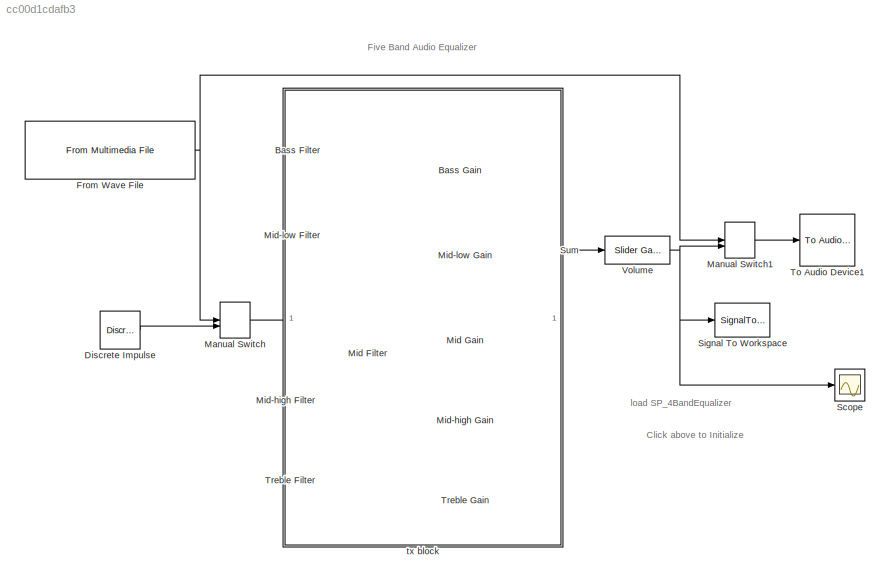
MODEL slx_cc00d1cdafb3
KIND model
CONFIG AbsTol = auto
CONFIG FixedStep = auto
CONFIG MaxStep = auto
CONFIG MinStep = auto
CONFIG RelTol = 1e-3
CONFIG SampleTimeConstraint = Unconstrained
CONFIG Solver = ode45
CONFIG SolverMode = Auto
CONFIG SolverName = ode45
CONFIG StartTime = 0.0
CONFIG StopTime = inf
BLOCK [Reference] Bass Filter  REF=dspobslib/Digital Filter
  AllPoleFiltStruct = Direct form
  BiQuadCoeffs = [1 0.3 0.4 1 0.1 0.2]
  CoeffSource = Specify via dialog
  DenCoeffs = denLP
  FIRFiltStruct = Direct form
  FiltPerSampPopup = One filter per frame
  FilterSource = Specify via dialog
  IC = 0
  ICden = 0
  ICnum = 0
  IIRFiltStruct = Direct form II transposed
  InputProcessing = Inherited (this choice will be removed - see release notes)
  LatticeCoeffs = [0.2 0.4]
  LockScale = off
  NumCoeffs = numLP
  Ports = [1, 1]
  ScaleValues = 1
  SourceBlock = dspobslib/Digital Filter
  SourceType = Digital Filter
  TypePopup = IIR (poles & zeros)
  UserDataPersistent = on
  accumFracLength = 30
  accumMode = Same as product output
  accumWordLength = 32
  additionalParams = off
  allowOverrides = on
  denIgnore = on
  dfiltObjectName = dfilt.dffir([1 2 1])
  firstCoeffFracLength = 15
  firstCoeffMode = Same word length as input
  firstCoeffWordLength = 16
  memoryFracLength = 15
  memoryMode = Same as accumulator
  memoryWordLength = 16
  multiplicandFracLength = 30
  multiplicandMode = Same as output
  multiplicandWordLength = 32
  outputFracLength = 15
  outputMode = Same as accumulator
  outputWordLength = 16
  overflowMode = off
  prodOutputFracLength = 30
  prodOutputMode = Same as input
  prodOutputWordLength = 32
  roundingMode = Floor
  scaleValueFracLength = 14
  secondCoeffFracLength = 15
  secondCoeffMode = Same as numerator
  secondCoeffWordLength = 16
  showAcc = off
  showCoeff = off
  showMem = off
  showMpy = off
  showOut = off
  stageIOMode = Same as input
  stageIOWordLength = 16
  stageInFracLength = 15
  stageOutFracLength = 15
  tapSumFracLength = 30
  tapSumMode = Same as input
  tapSumWordLength = 32
  thirdCoeffFracLength = 15
  thirdCoeffMode = Same as input
  thirdCoeffWordLength = 16
BLOCK [Reference] Bass Gain  REF=simulink/Math
Operations/Slider
Gain
  Ports = [1, 1]
  SourceBlock = simulink/Math\nOperations/Slider\nGain
  SourceType = Slider Gain
  gain = 1
  high = 2
  low = 0
BLOCK [Reference] Discrete Impulse  REF=dspsrcs4/Discrete 
Impulse
  Delay = 0
  FrameSample = 1
  LastOutDataTypeStr = double
  OutDataTypeStr = double
  Ports = [0, 1]
  SampleTime = 1/fSampling
  SourceBlock = dspsrcs4/Discrete \nImpulse
  SourceType = Discrete Impulse
  additionalParams = off
  allowOverrides = on
  dataType = double
  fracBitsMode = Best precision
  isSigned = on
  numFracBits = 15
  udDataType = sfix(16)
  wordLen = 16
BLOCK [Reference] From Wave File  REF=dspvision/From Multimedia File
  Ports = [0, 1]
  SourceBlock = dspvision/From Multimedia File
  SourceType = From Multimedia File
  audioDataType = double
  audioFrameSize = 1
  colorVideoFormat = Separate color signals
  computeAudioFrameSize = off
  dataOrg = Column-major
  fourcc = RGB
  inheritSampleTime = on
  inputFilename = myRecord.wav
  isIntensityVideo = off
  loop = on
  noAudioOutput = off
  numPlays = 1000
  outSamplingMode = Sample based
  outputEOF = off
  outputStreams = Audio only
  userDefinedSampleTime = 1/30
  videoDataType = single
BLOCK [ManualSwitch] Manual Switch
BLOCK [ManualSwitch] Manual Switch1
  CurrentSetting = 0
BLOCK [Reference] Mid Filter  REF=dspobslib/Digital Filter
  AllPoleFiltStruct = Direct form
  BiQuadCoeffs = [1 0.3 0.4 1 0.1 0.2]
  CoeffSource = Specify via dialog
  DenCoeffs = denMid2
  FIRFiltStruct = Direct form
  FiltPerSampPopup = One filter per frame
  FilterSource = Specify via dialog
  IC = 0
  ICden = 0
  ICnum = 0
  IIRFiltStruct = Direct form II transposed
  InputProcessing = Inherited (this choice will be removed - see release notes)
  LatticeCoeffs = [0.2 0.4]
  LockScale = off
  NumCoeffs = numMid2
  Ports = [1, 1]
  ScaleValues = 1
  SourceBlock = dspobslib/Digital Filter
  SourceType = Digital Filter
  TypePopup = IIR (poles & zeros)
  UserDataPersistent = on
  accumFracLength = 30
  accumMode = Same as product output
  accumWordLength = 32
  additionalParams = off
  allowOverrides = on
  denIgnore = on
  dfiltObjectName = dfilt.dffir([1 2 1])
  firstCoeffFracLength = 15
  firstCoeffMode = Same word length as input
  firstCoeffWordLength = 16
  memoryFracLength = 15
  memoryMode = Same as accumulator
  memoryWordLength = 16
  multiplicandFracLength = 30
  multiplicandMode = Same as output
  multiplicandWordLength = 32
  outputFracLength = 15
  outputMode = Same as accumulator
  outputWordLength = 16
  overflowMode = off
  prodOutputFracLength = 30
  prodOutputMode = Same as input
  prodOutputWordLength = 32
  roundingMode = Floor
  scaleValueFracLength = 14
  secondCoeffFracLength = 15
  secondCoeffMode = Same as numerator
  secondCoeffWordLength = 16
  showAcc = off
  showCoeff = off
  showMem = off
  showMpy = off
  showOut = off
  stageIOMode = Same as input
  stageIOWordLength = 16
  stageInFracLength = 15
  stageOutFracLength = 15
  tapSumFracLength = 30
  tapSumMode = Same as input
  tapSumWordLength = 32
  thirdCoeffFracLength = 15
  thirdCoeffMode = Same as input
  thirdCoeffWordLength = 16
BLOCK [Reference] Mid Gain  REF=simulink/Math
Operations/Slider
Gain
  Ports = [1, 1]
  SourceBlock = simulink/Math\nOperations/Slider\nGain
  SourceType = Slider Gain
  gain = 0
  high = 2
  low = 0
BLOCK [Reference] Mid-high Filter  REF=dspobslib/Digital Filter
  AllPoleFiltStruct = Direct form
  BiQuadCoeffs = [1 0.3 0.4 1 0.1 0.2]
  CoeffSource = Specify via dialog
  DenCoeffs = denMid2
  FIRFiltStruct = Direct form
  FiltPerSampPopup = One filter per frame
  FilterSource = Specify via dialog
  IC = 0
  ICden = 0
  ICnum = 0
  IIRFiltStruct = Direct form II transposed
  InputProcessing = Inherited (this choice will be removed - see release notes)
  LatticeCoeffs = [0.2 0.4]
  LockScale = off
  NumCoeffs = numMid3
  Ports = [1, 1]
  ScaleValues = 1
  SourceBlock = dspobslib/Digital Filter
  SourceType = Digital Filter
  TypePopup = FIR (all zeros)
  UserDataPersistent = on
  accumFracLength = 30
  accumMode = Same as product output
  accumWordLength = 32
  additionalParams = off
  allowOverrides = on
  denIgnore = on
  dfiltObjectName = dfilt.dffir([1 2 1])
  firstCoeffFracLength = 15
  firstCoeffMode = Same word length as input
  firstCoeffWordLength = 16
  memoryFracLength = 15
  memoryMode = Same as accumulator
  memoryWordLength = 16
  multiplicandFracLength = 30
  multiplicandMode = Same as output
  multiplicandWordLength = 32
  outputFracLength = 15
  outputMode = Same as accumulator
  outputWordLength = 16
  overflowMode = off
  prodOutputFracLength = 30
  prodOutputMode = Same as input
  prodOutputWordLength = 32
  roundingMode = Floor
  scaleValueFracLength = 14
  secondCoeffFracLength = 15
  secondCoeffMode = Same as numerator
  secondCoeffWordLength = 16
  showAcc = off
  showCoeff = off
  showMem = off
  showMpy = off
  showOut = off
  stageIOMode = Same as input
  stageIOWordLength = 16
  stageInFracLength = 15
  stageOutFracLength = 15
  tapSumFracLength = 30
  tapSumMode = Same as input
  tapSumWordLength = 32
  thirdCoeffFracLength = 15
  thirdCoeffMode = Same as input
  thirdCoeffWordLength = 16
BLOCK [Reference] Mid-high Gain  REF=simulink/Math
Operations/Slider
Gain
  Ports = [1, 1]
  SourceBlock = simulink/Math\nOperations/Slider\nGain
  SourceType = Slider Gain
  gain = 0
  high = 2
  low = 0
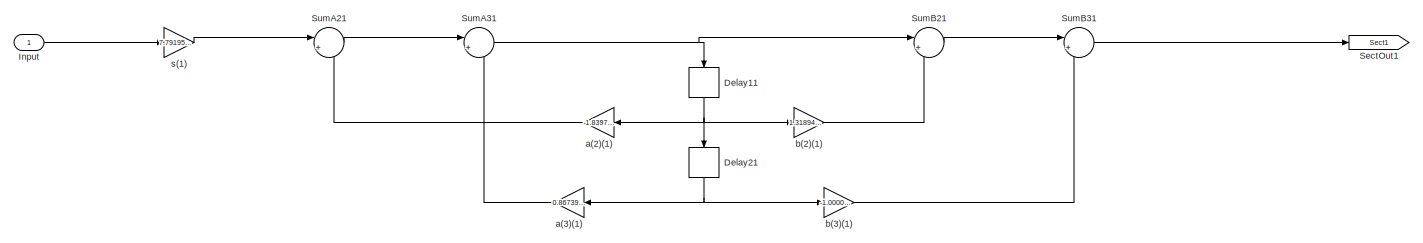
[diagram: Mid-low Filter - part 1/7, left side, full height]
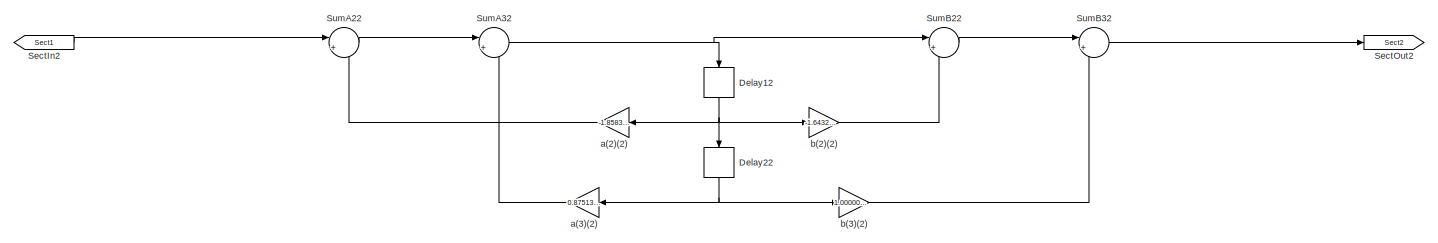
[diagram: Mid-low Filter - part 2/7, left side, full height]
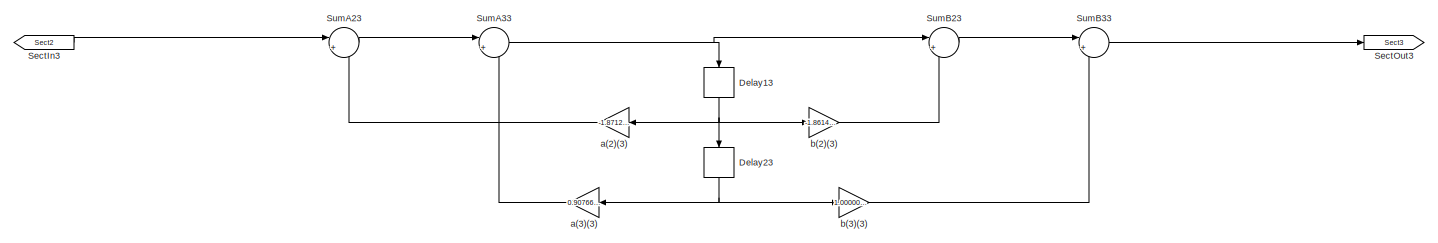
[diagram: Mid-low Filter - part 3/7, center side, full height]
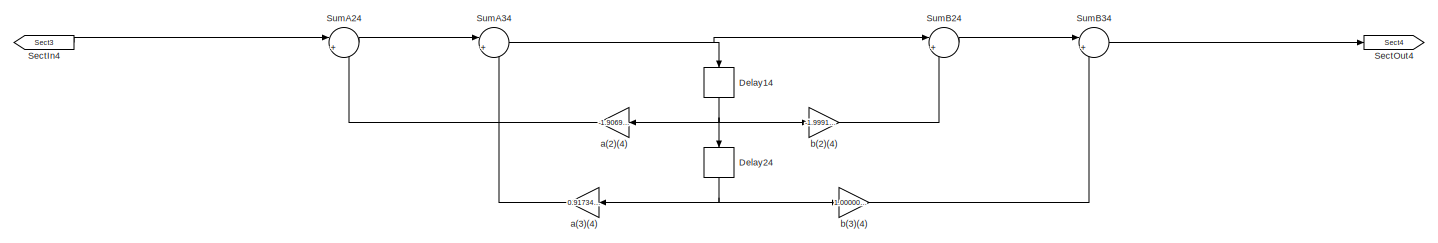
[diagram: Mid-low Filter - part 4/7, center side, full height]
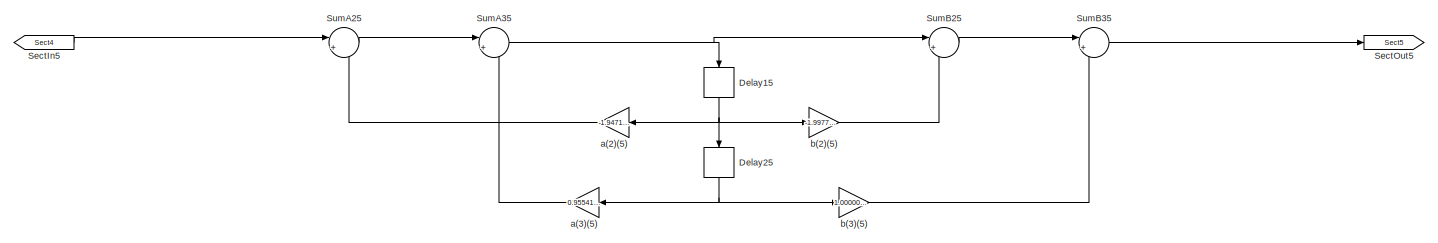
[diagram: Mid-low Filter - part 5/7, center side, full height]
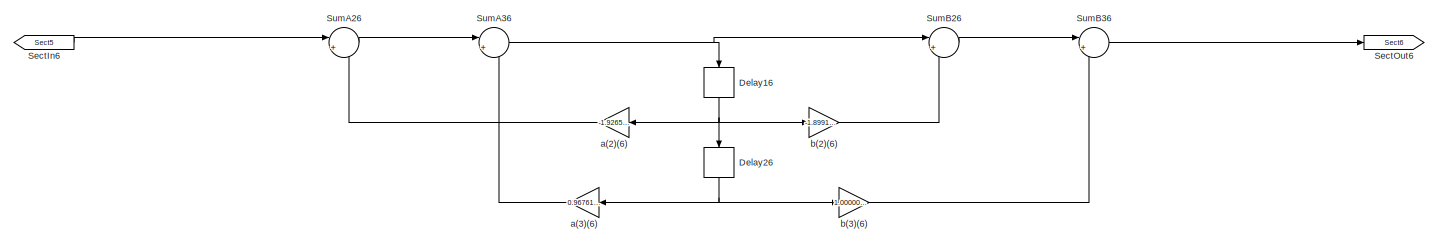
[diagram: Mid-low Filter - part 6/7, right side, full height]
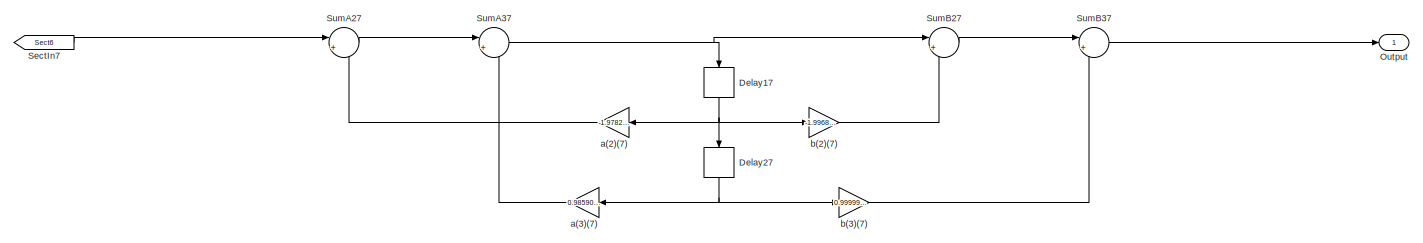
[diagram: Mid-low Filter - part 7/7, right side, full height]
BLOCK [SubSystem] Mid-low Filter
  ErrorFcn = dspFilterRealizedInBasicElemsAlgLoopErrFcnCallback
  Ports = [1, 1]
  RequestExecContextInheritance = off
  Tag = FilterWizardSubSystem
  UserDataPersistent = on
BLOCK [Delay] Mid-low Filter/Delay11
  DelayLength = 1
  InputPortMap = u0
  InputProcessing = Inherited
  Ports = [1, 1]
BLOCK [Delay] Mid-low Filter/Delay12
  DelayLength = 1
  InputPortMap = u0
  InputProcessing = Inherited
  Ports = [1, 1]
BLOCK [Delay] Mid-low Filter/Delay13
  DelayLength = 1
  InputPortMap = u0
  InputProcessing = Inherited
  Ports = [1, 1]
BLOCK [Delay] Mid-low Filter/Delay14
  DelayLength = 1
  InputPortMap = u0
  InputProcessing = Inherited
  Ports = [1, 1]
BLOCK [Delay] Mid-low Filter/Delay15
  DelayLength = 1
  InputPortMap = u0
  InputProcessing = Inherited
  Ports = [1, 1]
BLOCK [Delay] Mid-low Filter/Delay16
  DelayLength = 1
  InputPortMap = u0
  InputProcessing = Inherited
  Ports = [1, 1]
BLOCK [Delay] Mid-low Filter/Delay17
  DelayLength = 1
  InputPortMap = u0
  InputProcessing = Inherited
  Ports = [1, 1]
BLOCK [Delay] Mid-low Filter/Delay21
  DelayLength = 1
  InputPortMap = u0
  InputProcessing = Inherited
  Ports = [1, 1]
BLOCK [Delay] Mid-low Filter/Delay22
  DelayLength = 1
  InputPortMap = u0
  InputProcessing = Inherited
  Ports = [1, 1]
BLOCK [Delay] Mid-low Filter/Delay23
  DelayLength = 1
  InputPortMap = u0
  InputProcessing = Inherited
  Ports = [1, 1]
BLOCK [Delay] Mid-low Filter/Delay24
  DelayLength = 1
  InputPortMap = u0
  InputProcessing = Inherited
  Ports = [1, 1]
BLOCK [Delay] Mid-low Filter/Delay25
  DelayLength = 1
  InputPortMap = u0
  InputProcessing = Inherited
  Ports = [1, 1]
BLOCK [Delay] Mid-low Filter/Delay26
  DelayLength = 1
  InputPortMap = u0
  InputProcessing = Inherited
  Ports = [1, 1]
BLOCK [Delay] Mid-low Filter/Delay27
  DelayLength = 1
  InputPortMap = u0
  InputProcessing = Inherited
  Ports = [1, 1]
BLOCK [Inport] Mid-low Filter/Input
  IconDisplay = Port number
BLOCK [Outport] Mid-low Filter/Output
  IconDisplay = Port number
BLOCK [From] Mid-low Filter/SectIn2
  GotoTag = Sect1
BLOCK [From] Mid-low Filter/SectIn3
  GotoTag = Sect2
BLOCK [From] Mid-low Filter/SectIn4
  GotoTag = Sect3
BLOCK [From] Mid-low Filter/SectIn5
  GotoTag = Sect4
BLOCK [From] Mid-low Filter/SectIn6
  GotoTag = Sect5
BLOCK [From] Mid-low Filter/SectIn7
  GotoTag = Sect6
BLOCK [Goto] Mid-low Filter/SectOut1
  GotoTag = Sect1
BLOCK [Goto] Mid-low Filter/SectOut2
  GotoTag = Sect2
BLOCK [Goto] Mid-low Filter/SectOut3
  GotoTag = Sect3
BLOCK [Goto] Mid-low Filter/SectOut4
  GotoTag = Sect4
BLOCK [Goto] Mid-low Filter/SectOut5
  GotoTag = Sect5
BLOCK [Goto] Mid-low Filter/SectOut6
  GotoTag = Sect6
BLOCK [Sum] Mid-low Filter/SumA21
  IconShape = round
  InputSameDT = off
  Inputs = |+-
  Ports = [2, 1]
  RndMeth = Nearest
BLOCK [Sum] Mid-low Filter/SumA22
  IconShape = round
  InputSameDT = off
  Inputs = |+-
  Ports = [2, 1]
  RndMeth = Nearest
BLOCK [Sum] Mid-low Filter/SumA23
  IconShape = round
  InputSameDT = off
  Inputs = |+-
  Ports = [2, 1]
  RndMeth = Nearest
BLOCK [Sum] Mid-low Filter/SumA24
  IconShape = round
  InputSameDT = off
  Inputs = |+-
  Ports = [2, 1]
  RndMeth = Nearest
BLOCK [Sum] Mid-low Filter/SumA25
  IconShape = round
  InputSameDT = off
  Inputs = |+-
  Ports = [2, 1]
  RndMeth = Nearest
BLOCK [Sum] Mid-low Filter/SumA26
  IconShape = round
  InputSameDT = off
  Inputs = |+-
  Ports = [2, 1]
  RndMeth = Nearest
BLOCK [Sum] Mid-low Filter/SumA27
  IconShape = round
  InputSameDT = off
  Inputs = |+-
  Ports = [2, 1]
  RndMeth = Nearest
BLOCK [Sum] Mid-low Filter/SumA31
  IconShape = round
  InputSameDT = off
  Inputs = |+-
  Ports = [2, 1]
  RndMeth = Nearest
BLOCK [Sum] Mid-low Filter/SumA32
  IconShape = round
  InputSameDT = off
  Inputs = |+-
  Ports = [2, 1]
  RndMeth = Nearest
BLOCK [Sum] Mid-low Filter/SumA33
  IconShape = round
  InputSameDT = off
  Inputs = |+-
  Ports = [2, 1]
  RndMeth = Nearest
BLOCK [Sum] Mid-low Filter/SumA34
  IconShape = round
  InputSameDT = off
  Inputs = |+-
  Ports = [2, 1]
  RndMeth = Nearest
BLOCK [Sum] Mid-low Filter/SumA35
  IconShape = round
  InputSameDT = off
  Inputs = |+-
  Ports = [2, 1]
  RndMeth = Nearest
BLOCK [Sum] Mid-low Filter/SumA36
  IconShape = round
  InputSameDT = off
  Inputs = |+-
  Ports = [2, 1]
  RndMeth = Nearest
BLOCK [Sum] Mid-low Filter/SumA37
  IconShape = round
  InputSameDT = off
  Inputs = |+-
  Ports = [2, 1]
  RndMeth = Nearest
BLOCK [Sum] Mid-low Filter/SumB21
  IconShape = round
  InputSameDT = off
  Inputs = |++
  Ports = [2, 1]
  RndMeth = Nearest
BLOCK [Sum] Mid-low Filter/SumB22
  IconShape = round
  InputSameDT = off
  Inputs = |++
  Ports = [2, 1]
  RndMeth = Nearest
BLOCK [Sum] Mid-low Filter/SumB23
  IconShape = round
  InputSameDT = off
  Inputs = |++
  Ports = [2, 1]
  RndMeth = Nearest
BLOCK [Sum] Mid-low Filter/SumB24
  IconShape = round
  InputSameDT = off
  Inputs = |++
  Ports = [2, 1]
  RndMeth = Nearest
BLOCK [Sum] Mid-low Filter/SumB25
  IconShape = round
  InputSameDT = off
  Inputs = |++
  Ports = [2, 1]
  RndMeth = Nearest
BLOCK [Sum] Mid-low Filter/SumB26
  IconShape = round
  InputSameDT = off
  Inputs = |++
  Ports = [2, 1]
  RndMeth = Nearest
BLOCK [Sum] Mid-low Filter/SumB27
  IconShape = round
  InputSameDT = off
  Inputs = |++
  Ports = [2, 1]
  RndMeth = Nearest
BLOCK [Sum] Mid-low Filter/SumB31
  IconShape = round
  InputSameDT = off
  Inputs = |++
  Ports = [2, 1]
  RndMeth = Nearest
BLOCK [Sum] Mid-low Filter/SumB32
  IconShape = round
  InputSameDT = off
  Inputs = |++
  Ports = [2, 1]
  RndMeth = Nearest
BLOCK [Sum] Mid-low Filter/SumB33
  IconShape = round
  InputSameDT = off
  Inputs = |++
  Ports = [2, 1]
  RndMeth = Nearest
BLOCK [Sum] Mid-low Filter/SumB34
  IconShape = round
  InputSameDT = off
  Inputs = |++
  Ports = [2, 1]
  RndMeth = Nearest
BLOCK [Sum] Mid-low Filter/SumB35
  IconShape = round
  InputSameDT = off
  Inputs = |++
  Ports = [2, 1]
  RndMeth = Nearest
BLOCK [Sum] Mid-low Filter/SumB36
  IconShape = round
  InputSameDT = off
  Inputs = |++
  Ports = [2, 1]
  RndMeth = Nearest
BLOCK [Sum] Mid-low Filter/SumB37
  IconShape = round
  InputSameDT = off
  Inputs = |++
  Ports = [2, 1]
  RndMeth = Nearest
BLOCK [Gain] Mid-low Filter/a(2)(1)
  Gain = -1.8397589147605165
  ParamDataTypeStr = float('double')
  RndMeth = Nearest
BLOCK [Gain] Mid-low Filter/a(2)(2)
  Gain = -1.8583220864166883
  ParamDataTypeStr = float('double')
  RndMeth = Nearest
BLOCK [Gain] Mid-low Filter/a(2)(3)
  Gain = -1.8712688014443435
  ParamDataTypeStr = float('double')
  RndMeth = Nearest
BLOCK [Gain] Mid-low Filter/a(2)(4)
  Gain = -1.9069399167069183
  ParamDataTypeStr = float('double')
  RndMeth = Nearest
BLOCK [Gain] Mid-low Filter/a(2)(5)
  Gain = -1.9471940030405648
  ParamDataTypeStr = float('double')
  RndMeth = Nearest
BLOCK [Gain] Mid-low Filter/a(2)(6)
  Gain = -1.926593286699446
  ParamDataTypeStr = float('double')
  RndMeth = Nearest
BLOCK [Gain] Mid-low Filter/a(2)(7)
  Gain = -1.9782662654393
  ParamDataTypeStr = float('double')
  RndMeth = Nearest
BLOCK [Gain] Mid-low Filter/a(3)(1)
  Gain = 0.86739367596745631
  ParamDataTypeStr = float('double')
  RndMeth = Nearest
BLOCK [Gain] Mid-low Filter/a(3)(2)
  Gain = 0.87513761574710858
  ParamDataTypeStr = float('double')
  RndMeth = Nearest
BLOCK [Gain] Mid-low Filter/a(3)(3)
  Gain = 0.90766844036617067
  ParamDataTypeStr = float('double')
  RndMeth = Nearest
BLOCK [Gain] Mid-low Filter/a(3)(4)
  Gain = 0.91734710412163789
  ParamDataTypeStr = float('double')
  RndMeth = Nearest
BLOCK [Gain] Mid-low Filter/a(3)(5)
  Gain = 0.95541312807765288
  ParamDataTypeStr = float('double')
  RndMeth = Nearest
BLOCK [Gain] Mid-low Filter/a(3)(6)
  Gain = 0.96761068739952549
  ParamDataTypeStr = float('double')
  RndMeth = Nearest
BLOCK [Gain] Mid-low Filter/a(3)(7)
  Gain = 0.98590111868989483
  ParamDataTypeStr = float('double')
  RndMeth = Nearest
BLOCK [Gain] Mid-low Filter/b(2)(1)
  Gain = 1.318944953254686e-013
  ParamDataTypeStr = float('double')
  RndMeth = Nearest
BLOCK [Gain] Mid-low Filter/b(2)(2)
  Gain = -1.6432990603581503
  ParamDataTypeStr = float('double')
  RndMeth = Nearest
BLOCK [Gain] Mid-low Filter/b(2)(3)
  Gain = -1.8614317424464004
  ParamDataTypeStr = float('double')
  RndMeth = Nearest
BLOCK [Gain] Mid-low Filter/b(2)(4)
  Gain = -1.9991713736623455
  ParamDataTypeStr = float('double')
  RndMeth = Nearest
BLOCK [Gain] Mid-low Filter/b(2)(5)
  Gain = -1.9977400579240996
  ParamDataTypeStr = float('double')
  RndMeth = Nearest
BLOCK [Gain] Mid-low Filter/b(2)(6)
  Gain = -1.8991207395228842
  ParamDataTypeStr = float('double')
  RndMeth = Nearest
BLOCK [Gain] Mid-low Filter/b(2)(7)
  Gain = -1.9968661186880208
  ParamDataTypeStr = float('double')
  RndMeth = Nearest
BLOCK [Gain] Mid-low Filter/b(3)(1)
  Gain = -1.0000000000001319
  ParamDataTypeStr = float('double')
  RndMeth = Nearest
BLOCK [Gain] Mid-low Filter/b(3)(2)
  Gain = 1.0000000000000222
  ParamDataTypeStr = float('double')
  RndMeth = Nearest
BLOCK [Gain] Mid-low Filter/b(3)(3)
  Gain = 1.0000000000000007
  ParamDataTypeStr = float('double')
  RndMeth = Nearest
BLOCK [Gain] Mid-low Filter/b(3)(4)
  Gain = 1.000000000000002
  ParamDataTypeStr = float('double')
  RndMeth = Nearest
BLOCK [Gain] Mid-low Filter/b(3)(5)
  Gain = 1.0000000000000024
  ParamDataTypeStr = float('double')
  RndMeth = Nearest
BLOCK [Gain] Mid-low Filter/b(3)(6)
  Gain = 1.0000000000000002
  ParamDataTypeStr = float('double')
  RndMeth = Nearest
BLOCK [Gain] Mid-low Filter/b(3)(7)
  Gain = 0.99999999999999989
  ParamDataTypeStr = float('double')
  RndMeth = Nearest
BLOCK [Gain] Mid-low Filter/s(1)
  Gain = 7.7919570257835674e-005
  ParamDataTypeStr = float('double')
  RndMeth = Nearest
BLOCK [Reference] Mid-low Gain  REF=simulink/Math
Operations/Slider
Gain
  Ports = [1, 1]
  SourceBlock = simulink/Math\nOperations/Slider\nGain
  SourceType = Slider Gain
  gain = 0
  high = 2
  low = 0
BLOCK [Scope] Scope
  Floating = off
  NumInputPorts = 1
  Ports = [1]
  YMax = 1.25
  YMin = -1.25
BLOCK [SignalToWorkspace] Signal To Workspace
  CopyFcn = dspblkcopystw(gcbh);
  MaxDataPoints = inf
  Ports = [1]
  Save2DSignal = Inherit from input (this choice will be removed - see release notes)
  VariableName = yout
BLOCK [Sum] Sum
  IconShape = round
  InputSameDT = off
  Inputs = |+++++
  OutDataTypeStr = Inherit: Inherit via internal rule
  Ports = [5, 1]
  SaturateOnIntegerOverflow = off
BLOCK [Reference] To Audio Device1  REF=dspsnks4/To Audio
Device
  Ports = [1]
  SourceBlock = dspsnks4/To Audio\nDevice
  SourceType = To Audio Device
  autoBufferSize = on
  bufferSize = 4096
  defaultOutputChannelMapping = on
  deviceDatatype = Determine from input data type
  deviceName = Default
  inheritSampleRate = off
  outputChannelMapping = 1:2
  outputNumUnderrunSamples = off
  queueDuration = 1.0
  sampleRate = 22050
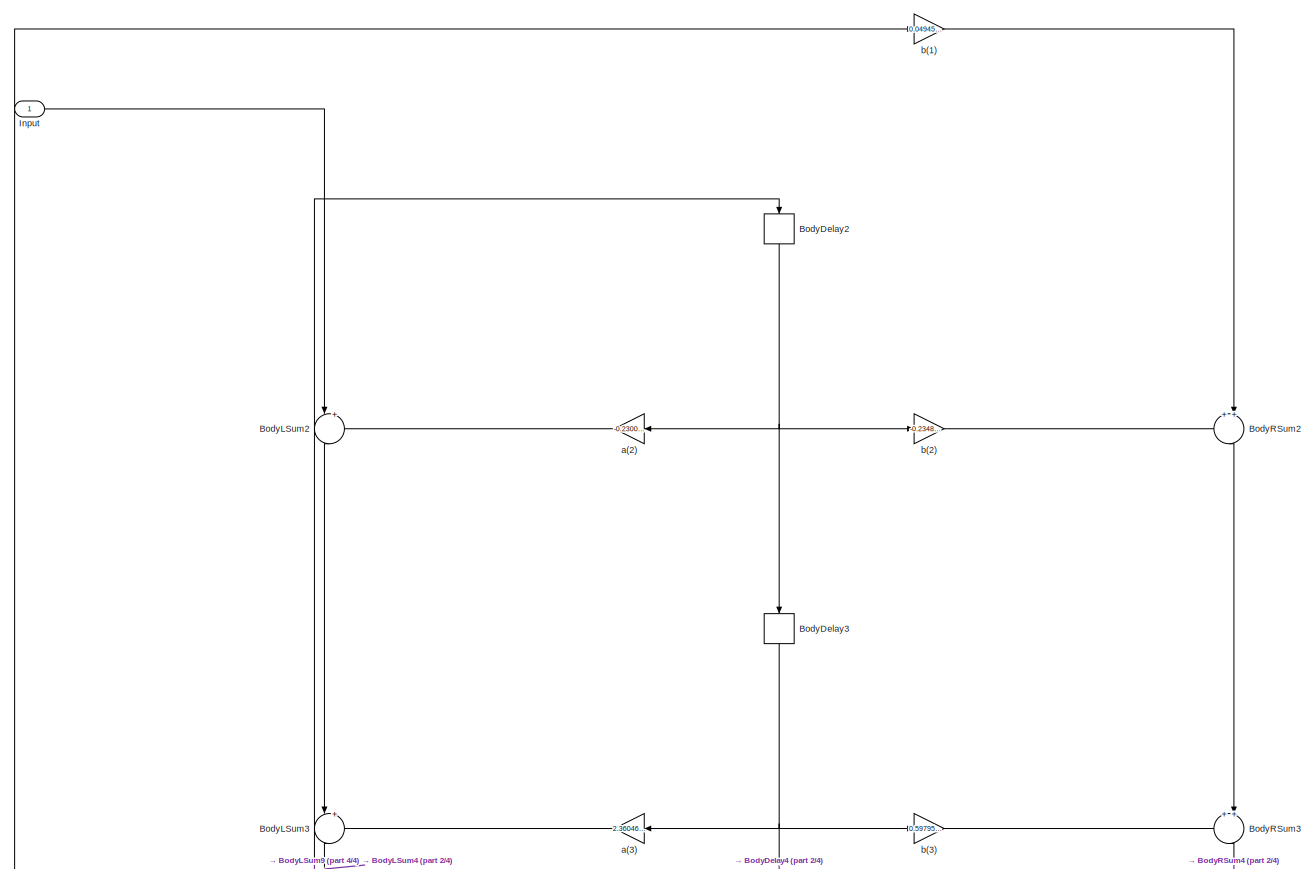
[diagram: Treble Filter - part 1/4, full width, top band]
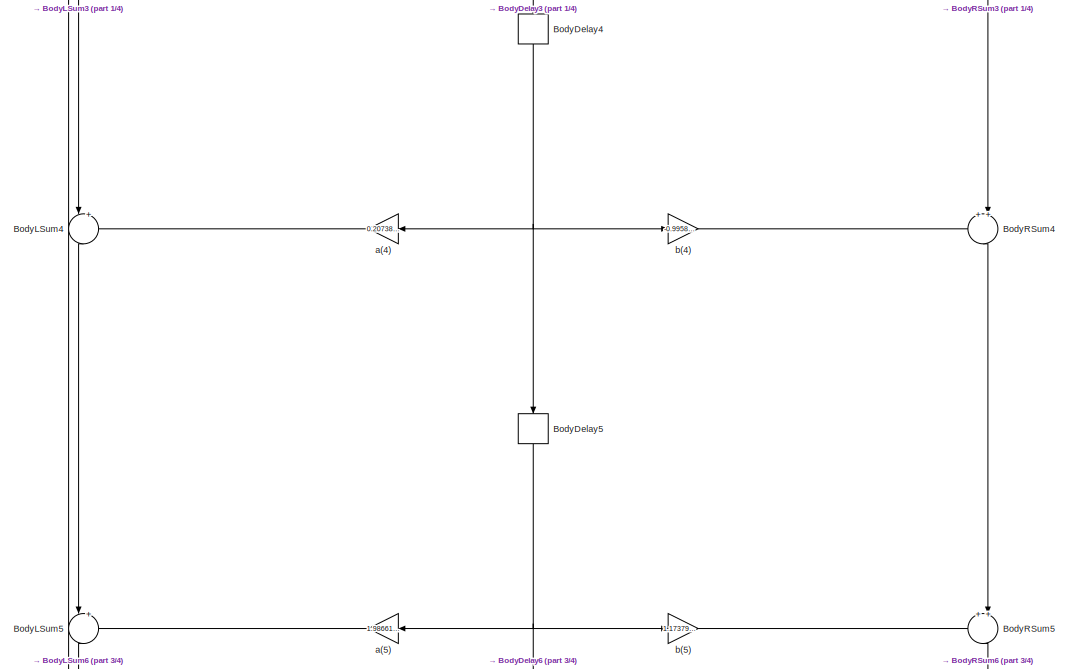
[diagram: Treble Filter - part 2/4, central region]
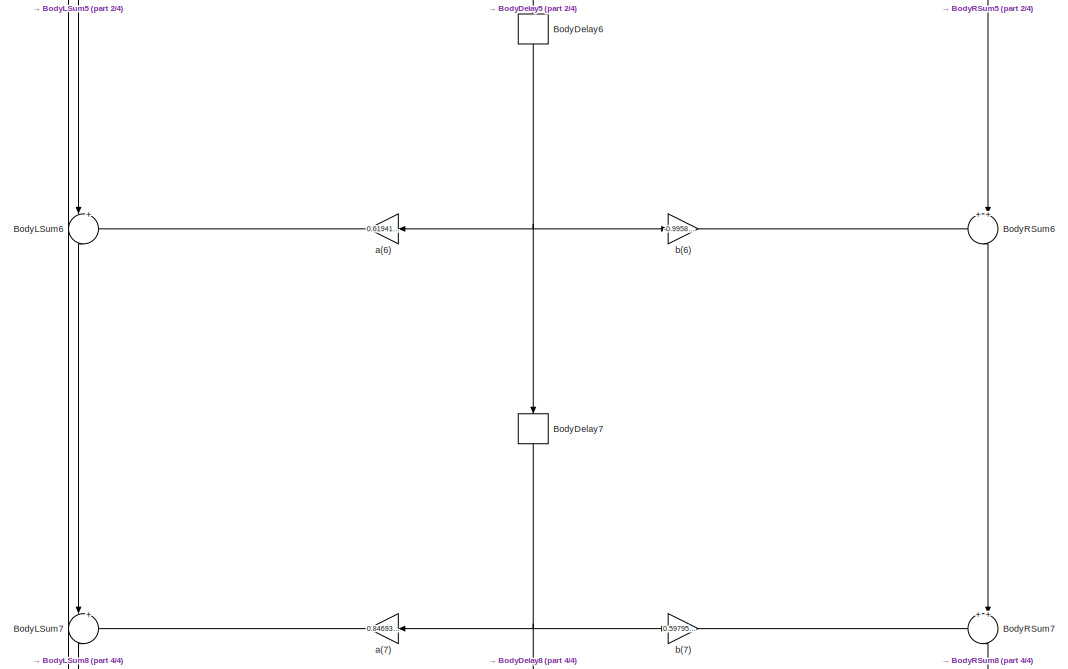
[diagram: Treble Filter - part 3/4, central region]
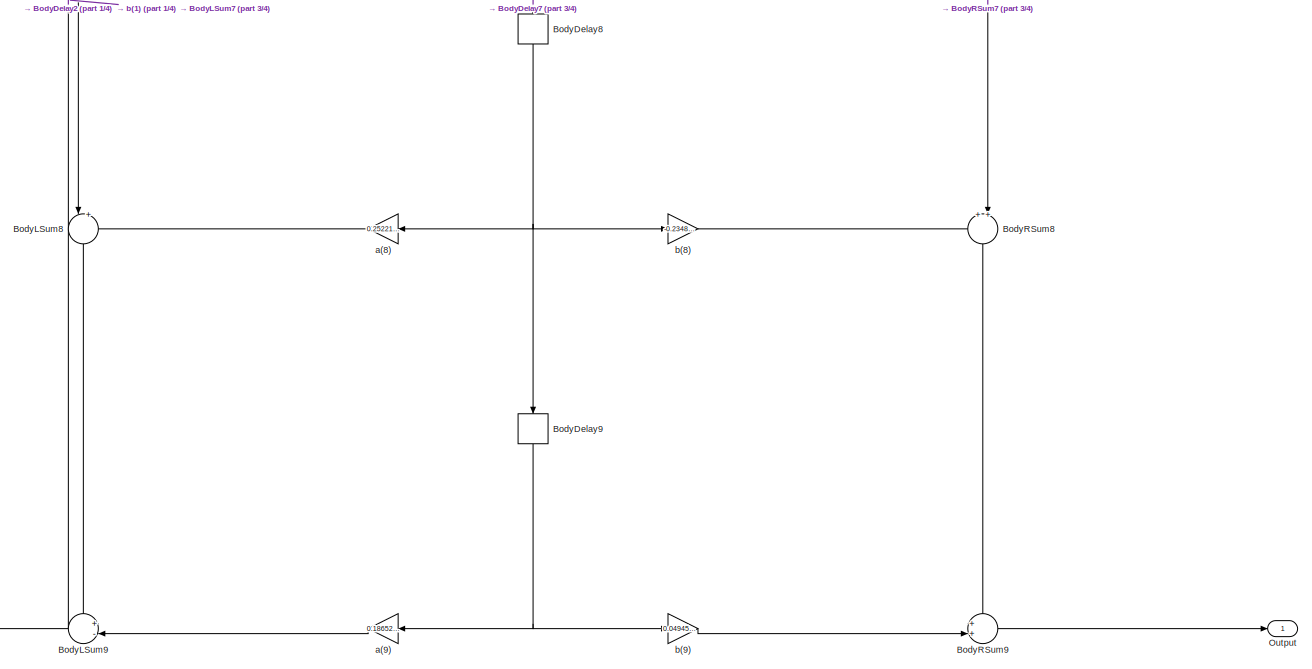
[diagram: Treble Filter - part 4/4, full width, bottom band]
BLOCK [SubSystem] Treble Filter
  ErrorFcn = dspFilterRealizedInBasicElemsAlgLoopErrFcnCallback
  Ports = [1, 1]
  RequestExecContextInheritance = off
  Tag = FilterWizardSubSystem
  UserDataPersistent = on
BLOCK [Delay] Treble Filter/BodyDelay2
  DelayLength = 1
  InputPortMap = u0
  InputProcessing = Inherited
  Ports = [1, 1]
BLOCK [Delay] Treble Filter/BodyDelay3
  DelayLength = 1
  InputPortMap = u0
  InputProcessing = Inherited
  Ports = [1, 1]
BLOCK [Delay] Treble Filter/BodyDelay4
  DelayLength = 1
  InputPortMap = u0
  InputProcessing = Inherited
  Ports = [1, 1]
BLOCK [Delay] Treble Filter/BodyDelay5
  DelayLength = 1
  InputPortMap = u0
  InputProcessing = Inherited
  Ports = [1, 1]
BLOCK [Delay] Treble Filter/BodyDelay6
  DelayLength = 1
  InputPortMap = u0
  InputProcessing = Inherited
  Ports = [1, 1]
BLOCK [Delay] Treble Filter/BodyDelay7
  DelayLength = 1
  InputPortMap = u0
  InputProcessing = Inherited
  Ports = [1, 1]
BLOCK [Delay] Treble Filter/BodyDelay8
  DelayLength = 1
  InputPortMap = u0
  InputProcessing = Inherited
  Ports = [1, 1]
BLOCK [Delay] Treble Filter/BodyDelay9
  DelayLength = 1
  InputPortMap = u0
  InputProcessing = Inherited
  Ports = [1, 1]
BLOCK [Sum] Treble Filter/BodyLSum2
  IconShape = round
  InputSameDT = off
  Inputs = |+-
  Ports = [2, 1]
  RndMeth = Nearest
BLOCK [Sum] Treble Filter/BodyLSum3
  IconShape = round
  InputSameDT = off
  Inputs = |+-
  Ports = [2, 1]
  RndMeth = Nearest
BLOCK [Sum] Treble Filter/BodyLSum4
  IconShape = round
  InputSameDT = off
  Inputs = |+-
  Ports = [2, 1]
  RndMeth = Nearest
BLOCK [Sum] Treble Filter/BodyLSum5
  IconShape = round
  InputSameDT = off
  Inputs = |+-
  Ports = [2, 1]
  RndMeth = Nearest
BLOCK [Sum] Treble Filter/BodyLSum6
  IconShape = round
  InputSameDT = off
  Inputs = |+-
  Ports = [2, 1]
  RndMeth = Nearest
BLOCK [Sum] Treble Filter/BodyLSum7
  IconShape = round
  InputSameDT = off
  Inputs = |+-
  Ports = [2, 1]
  RndMeth = Nearest
BLOCK [Sum] Treble Filter/BodyLSum8
  IconShape = round
  InputSameDT = off
  Inputs = |+-
  Ports = [2, 1]
  RndMeth = Nearest
BLOCK [Sum] Treble Filter/BodyLSum9
  IconShape = round
  InputSameDT = off
  Inputs = +-|
  Ports = [2, 1]
  RndMeth = Nearest
BLOCK [Sum] Treble Filter/BodyRSum2
  IconShape = round
  InputSameDT = off
  Inputs = ++|
  Ports = [2, 1]
  RndMeth = Nearest
BLOCK [Sum] Treble Filter/BodyRSum3
  IconShape = round
  InputSameDT = off
  Inputs = ++|
  Ports = [2, 1]
  RndMeth = Nearest
BLOCK [Sum] Treble Filter/BodyRSum4
  IconShape = round
  InputSameDT = off
  Inputs = ++|
  Ports = [2, 1]
  RndMeth = Nearest
BLOCK [Sum] Treble Filter/BodyRSum5
  IconShape = round
  InputSameDT = off
  Inputs = ++|
  Ports = [2, 1]
  RndMeth = Nearest
BLOCK [Sum] Treble Filter/BodyRSum6
  IconShape = round
  InputSameDT = off
  Inputs = ++|
  Ports = [2, 1]
  RndMeth = Nearest
BLOCK [Sum] Treble Filter/BodyRSum7
  IconShape = round
  InputSameDT = off
  Inputs = ++|
  Ports = [2, 1]
  RndMeth = Nearest
BLOCK [Sum] Treble Filter/BodyRSum8
  IconShape = round
  InputSameDT = off
  Inputs = ++|
  Ports = [2, 1]
  RndMeth = Nearest
BLOCK [Sum] Treble Filter/BodyRSum9
  IconShape = round
  InputSameDT = off
  Inputs = ++|
  Ports = [2, 1]
  RndMeth = Nearest
BLOCK [Inport] Treble Filter/Input
  IconDisplay = Port number
BLOCK [Outport] Treble Filter/Output
  IconDisplay = Port number
BLOCK [Gain] Treble Filter/a(2)
  Gain = -0.23004065549035696
  ParamDataTypeStr = float('double')
  RndMeth = Nearest
BLOCK [Gain] Treble Filter/a(3)
  Gain = 2.3604621460660438
  ParamDataTypeStr = float('double')
  RndMeth = Nearest
BLOCK [Gain] Treble Filter/a(4)
  Gain = 0.20738024531054688
  ParamDataTypeStr = float('double')
  RndMeth = Nearest
BLOCK [Gain] Treble Filter/a(5)
  Gain = 1.9866115549810117
  ParamDataTypeStr = float('double')
  RndMeth = Nearest
BLOCK [Gain] Treble Filter/a(6)
  Gain = 0.61941637075608258
  ParamDataTypeStr = float('double')
  RndMeth = Nearest
BLOCK [Gain] Treble Filter/a(7)
  Gain = 0.84693265986725741
  ParamDataTypeStr = float('double')
  RndMeth = Nearest
BLOCK [Gain] Treble Filter/a(8)
  Gain = 0.25221562353240889
  ParamDataTypeStr = float('double')
  RndMeth = Nearest
BLOCK [Gain] Treble Filter/a(9)
  Gain = 0.18652620481538909
  ParamDataTypeStr = float('double')
  RndMeth = Nearest
BLOCK [Gain] Treble Filter/b(1)
  Gain = 0.049458947416689658
  ParamDataTypeStr = float('double')
  RndMeth = Nearest
BLOCK [Gain] Treble Filter/b(2)
  Gain = -0.23487112507843391
  ParamDataTypeStr = float('double')
  RndMeth = Nearest
BLOCK [Gain] Treble Filter/b(3)
  Gain = 0.59795374978510274
  ParamDataTypeStr = float('double')
  RndMeth = Nearest
BLOCK [Gain] Treble Filter/b(4)
  Gain = -0.99582372743807501
  ParamDataTypeStr = float('double')
  RndMeth = Nearest
BLOCK [Gain] Treble Filter/b(5)
  Gain = 1.1737938147771962
  ParamDataTypeStr = float('double')
  RndMeth = Nearest
BLOCK [Gain] Treble Filter/b(6)
  Gain = -0.99582372743807945
  ParamDataTypeStr = float('double')
  RndMeth = Nearest
BLOCK [Gain] Treble Filter/b(7)
  Gain = 0.59795374978510807
  ParamDataTypeStr = float('double')
  RndMeth = Nearest
BLOCK [Gain] Treble Filter/b(8)
  Gain = -0.23487112507843727
  ParamDataTypeStr = float('double')
  RndMeth = Nearest
BLOCK [Gain] Treble Filter/b(9)
  Gain = 0.04945894741669065
  ParamDataTypeStr = float('double')
  RndMeth = Nearest
BLOCK [Reference] Treble Gain  REF=simulink/Math
Operations/Slider
Gain
  Ports = [1, 1]
  SourceBlock = simulink/Math\nOperations/Slider\nGain
  SourceType = Slider Gain
  gain = 0
  high = 2
  low = 0
BLOCK [Reference] Volume   REF=simulink/Math
Operations/Slider
Gain
  Ports = [1, 1]
  SourceBlock = simulink/Math\nOperations/Slider\nGain
  SourceType = Slider Gain
  gain = 1
  high = 2
  low = 0
BLOCK [SubSystem] tx block
  Ports = []
  RequestExecContextInheritance = off
ANNOTATION (root): Click above to Initialize
ANNOTATION (root): Five Band Audio Equalizer
ANNOTATION (root): load SP_4BandEqualizer
LINE Bass Filter:1 -> Bass Gain:1
LINE Bass Gain:1 -> Sum:1
LINE Discrete Impulse:1 -> Manual Switch:2
NET From Wave File:1 -> Manual Switch1:1, Manual Switch:1
LINE Manual Switch1:1 -> To Audio Device1:1
NET Manual Switch:1 -> Bass Filter:1, Mid Filter:1, Mid-high Filter:1, Mid-low Filter:1, Treble Filter:1
LINE Mid Filter:1 -> Mid Gain:1
LINE Mid Gain:1 -> Sum:3
LINE Mid-high Filter:1 -> Mid-high Gain:1
LINE Mid-high Gain:1 -> Sum:4
NET Mid-low Filter/Delay11:1 -> Mid-low Filter/Delay21:1, Mid-low Filter/a(2)(1):1, Mid-low Filter/b(2)(1):1
NET Mid-low Filter/Delay12:1 -> Mid-low Filter/Delay22:1, Mid-low Filter/a(2)(2):1, Mid-low Filter/b(2)(2):1
NET Mid-low Filter/Delay13:1 -> Mid-low Filter/Delay23:1, Mid-low Filter/a(2)(3):1, Mid-low Filter/b(2)(3):1
NET Mid-low Filter/Delay14:1 -> Mid-low Filter/Delay24:1, Mid-low Filter/a(2)(4):1, Mid-low Filter/b(2)(4):1
NET Mid-low Filter/Delay15:1 -> Mid-low Filter/Delay25:1, Mid-low Filter/a(2)(5):1, Mid-low Filter/b(2)(5):1
NET Mid-low Filter/Delay16:1 -> Mid-low Filter/Delay26:1, Mid-low Filter/a(2)(6):1, Mid-low Filter/b(2)(6):1
NET Mid-low Filter/Delay17:1 -> Mid-low Filter/Delay27:1, Mid-low Filter/a(2)(7):1, Mid-low Filter/b(2)(7):1
NET Mid-low Filter/Delay21:1 -> Mid-low Filter/a(3)(1):1, Mid-low Filter/b(3)(1):1
NET Mid-low Filter/Delay22:1 -> Mid-low Filter/a(3)(2):1, Mid-low Filter/b(3)(2):1
NET Mid-low Filter/Delay23:1 -> Mid-low Filter/a(3)(3):1, Mid-low Filter/b(3)(3):1
NET Mid-low Filter/Delay24:1 -> Mid-low Filter/a(3)(4):1, Mid-low Filter/b(3)(4):1
NET Mid-low Filter/Delay25:1 -> Mid-low Filter/a(3)(5):1, Mid-low Filter/b(3)(5):1
NET Mid-low Filter/Delay26:1 -> Mid-low Filter/a(3)(6):1, Mid-low Filter/b(3)(6):1
NET Mid-low Filter/Delay27:1 -> Mid-low Filter/a(3)(7):1, Mid-low Filter/b(3)(7):1
LINE Mid-low Filter/Input:1 -> Mid-low Filter/s(1):1
LINE Mid-low Filter/SectIn2:1 -> Mid-low Filter/SumA22:1
LINE Mid-low Filter/SectIn3:1 -> Mid-low Filter/SumA23:1
LINE Mid-low Filter/SectIn4:1 -> Mid-low Filter/SumA24:1
LINE Mid-low Filter/SectIn5:1 -> Mid-low Filter/SumA25:1
LINE Mid-low Filter/SectIn6:1 -> Mid-low Filter/SumA26:1
LINE Mid-low Filter/SectIn7:1 -> Mid-low Filter/SumA27:1
LINE Mid-low Filter/SumA21:1 -> Mid-low Filter/SumA31:1
LINE Mid-low Filter/SumA22:1 -> Mid-low Filter/SumA32:1
LINE Mid-low Filter/SumA23:1 -> Mid-low Filter/SumA33:1
LINE Mid-low Filter/SumA24:1 -> Mid-low Filter/SumA34:1
LINE Mid-low Filter/SumA25:1 -> Mid-low Filter/SumA35:1
LINE Mid-low Filter/SumA26:1 -> Mid-low Filter/SumA36:1
LINE Mid-low Filter/SumA27:1 -> Mid-low Filter/SumA37:1
NET Mid-low Filter/SumA31:1 -> Mid-low Filter/Delay11:1, Mid-low Filter/SumB21:1
NET Mid-low Filter/SumA32:1 -> Mid-low Filter/Delay12:1, Mid-low Filter/SumB22:1
NET Mid-low Filter/SumA33:1 -> Mid-low Filter/Delay13:1, Mid-low Filter/SumB23:1
NET Mid-low Filter/SumA34:1 -> Mid-low Filter/Delay14:1, Mid-low Filter/SumB24:1
NET Mid-low Filter/SumA35:1 -> Mid-low Filter/Delay15:1, Mid-low Filter/SumB25:1
NET Mid-low Filter/SumA36:1 -> Mid-low Filter/Delay16:1, Mid-low Filter/SumB26:1
NET Mid-low Filter/SumA37:1 -> Mid-low Filter/Delay17:1, Mid-low Filter/SumB27:1
LINE Mid-low Filter/SumB21:1 -> Mid-low Filter/SumB31:1
LINE Mid-low Filter/SumB22:1 -> Mid-low Filter/SumB32:1
LINE Mid-low Filter/SumB23:1 -> Mid-low Filter/SumB33:1
LINE Mid-low Filter/SumB24:1 -> Mid-low Filter/SumB34:1
LINE Mid-low Filter/SumB25:1 -> Mid-low Filter/SumB35:1
LINE Mid-low Filter/SumB26:1 -> Mid-low Filter/SumB36:1
LINE Mid-low Filter/SumB27:1 -> Mid-low Filter/SumB37:1
LINE Mid-low Filter/SumB31:1 -> Mid-low Filter/SectOut1:1
LINE Mid-low Filter/SumB32:1 -> Mid-low Filter/SectOut2:1
LINE Mid-low Filter/SumB33:1 -> Mid-low Filter/SectOut3:1
LINE Mid-low Filter/SumB34:1 -> Mid-low Filter/SectOut4:1
LINE Mid-low Filter/SumB35:1 -> Mid-low Filter/SectOut5:1
LINE Mid-low Filter/SumB36:1 -> Mid-low Filter/SectOut6:1
LINE Mid-low Filter/SumB37:1 -> Mid-low Filter/Output:1
LINE Mid-low Filter/a(2)(1):1 -> Mid-low Filter/SumA21:2
LINE Mid-low Filter/a(2)(2):1 -> Mid-low Filter/SumA22:2
LINE Mid-low Filter/a(2)(3):1 -> Mid-low Filter/SumA23:2
LINE Mid-low Filter/a(2)(4):1 -> Mid-low Filter/SumA24:2
LINE Mid-low Filter/a(2)(5):1 -> Mid-low Filter/SumA25:2
LINE Mid-low Filter/a(2)(6):1 -> Mid-low Filter/SumA26:2
LINE Mid-low Filter/a(2)(7):1 -> Mid-low Filter/SumA27:2
LINE Mid-low Filter/a(3)(1):1 -> Mid-low Filter/SumA31:2
LINE Mid-low Filter/a(3)(2):1 -> Mid-low Filter/SumA32:2
LINE Mid-low Filter/a(3)(3):1 -> Mid-low Filter/SumA33:2
LINE Mid-low Filter/a(3)(4):1 -> Mid-low Filter/SumA34:2
LINE Mid-low Filter/a(3)(5):1 -> Mid-low Filter/SumA35:2
LINE Mid-low Filter/a(3)(6):1 -> Mid-low Filter/SumA36:2
LINE Mid-low Filter/a(3)(7):1 -> Mid-low Filter/SumA37:2
LINE Mid-low Filter/b(2)(1):1 -> Mid-low Filter/SumB21:2
LINE Mid-low Filter/b(2)(2):1 -> Mid-low Filter/SumB22:2
LINE Mid-low Filter/b(2)(3):1 -> Mid-low Filter/SumB23:2
LINE Mid-low Filter/b(2)(4):1 -> Mid-low Filter/SumB24:2
LINE Mid-low Filter/b(2)(5):1 -> Mid-low Filter/SumB25:2
LINE Mid-low Filter/b(2)(6):1 -> Mid-low Filter/SumB26:2
LINE Mid-low Filter/b(2)(7):1 -> Mid-low Filter/SumB27:2
LINE Mid-low Filter/b(3)(1):1 -> Mid-low Filter/SumB31:2
LINE Mid-low Filter/b(3)(2):1 -> Mid-low Filter/SumB32:2
LINE Mid-low Filter/b(3)(3):1 -> Mid-low Filter/SumB33:2
LINE Mid-low Filter/b(3)(4):1 -> Mid-low Filter/SumB34:2
LINE Mid-low Filter/b(3)(5):1 -> Mid-low Filter/SumB35:2
LINE Mid-low Filter/b(3)(6):1 -> Mid-low Filter/SumB36:2
LINE Mid-low Filter/b(3)(7):1 -> Mid-low Filter/SumB37:2
LINE Mid-low Filter/s(1):1 -> Mid-low Filter/SumA21:1
LINE Mid-low Filter:1 -> Mid-low Gain:1
LINE Mid-low Gain:1 -> Sum:2
LINE Sum:1 -> Volume :1
NET Treble Filter/BodyDelay2:1 -> Treble Filter/BodyDelay3:1, Treble Filter/a(2):1, Treble Filter/b(2):1
NET Treble Filter/BodyDelay3:1 -> Treble Filter/BodyDelay4:1, Treble Filter/a(3):1, Treble Filter/b(3):1
NET Treble Filter/BodyDelay4:1 -> Treble Filter/BodyDelay5:1, Treble Filter/a(4):1, Treble Filter/b(4):1
NET Treble Filter/BodyDelay5:1 -> Treble Filter/BodyDelay6:1, Treble Filter/a(5):1, Treble Filter/b(5):1
NET Treble Filter/BodyDelay6:1 -> Treble Filter/BodyDelay7:1, Treble Filter/a(6):1, Treble Filter/b(6):1
NET Treble Filter/BodyDelay7:1 -> Treble Filter/BodyDelay8:1, Treble Filter/a(7):1, Treble Filter/b(7):1
NET Treble Filter/BodyDelay8:1 -> Treble Filter/BodyDelay9:1, Treble Filter/a(8):1, Treble Filter/b(8):1
NET Treble Filter/BodyDelay9:1 -> Treble Filter/a(9):1, Treble Filter/b(9):1
LINE Treble Filter/BodyLSum2:1 -> Treble Filter/BodyLSum3:1
LINE Treble Filter/BodyLSum3:1 -> Treble Filter/BodyLSum4:1
LINE Treble Filter/BodyLSum4:1 -> Treble Filter/BodyLSum5:1
LINE Treble Filter/BodyLSum5:1 -> Treble Filter/BodyLSum6:1
LINE Treble Filter/BodyLSum6:1 -> Treble Filter/BodyLSum7:1
LINE Treble Filter/BodyLSum7:1 -> Treble Filter/BodyLSum8:1
LINE Treble Filter/BodyLSum8:1 -> Treble Filter/BodyLSum9:1
NET Treble Filter/BodyLSum9:1 -> Treble Filter/BodyDelay2:1, Treble Filter/b(1):1
LINE Treble Filter/BodyRSum2:1 -> Treble Filter/BodyRSum3:2
LINE Treble Filter/BodyRSum3:1 -> Treble Filter/BodyRSum4:2
LINE Treble Filter/BodyRSum4:1 -> Treble Filter/BodyRSum5:2
LINE Treble Filter/BodyRSum5:1 -> Treble Filter/BodyRSum6:2
LINE Treble Filter/BodyRSum6:1 -> Treble Filter/BodyRSum7:2
LINE Treble Filter/BodyRSum7:1 -> Treble Filter/BodyRSum8:2
LINE Treble Filter/BodyRSum8:1 -> Treble Filter/BodyRSum9:1
LINE Treble Filter/BodyRSum9:1 -> Treble Filter/Output:1
LINE Treble Filter/Input:1 -> Treble Filter/BodyLSum2:1
LINE Treble Filter/a(2):1 -> Treble Filter/BodyLSum2:2
LINE Treble Filter/a(3):1 -> Treble Filter/BodyLSum3:2
LINE Treble Filter/a(4):1 -> Treble Filter/BodyLSum4:2
LINE Treble Filter/a(5):1 -> Treble Filter/BodyLSum5:2
LINE Treble Filter/a(6):1 -> Treble Filter/BodyLSum6:2
LINE Treble Filter/a(7):1 -> Treble Filter/BodyLSum7:2
LINE Treble Filter/a(8):1 -> Treble Filter/BodyLSum8:2
LINE Treble Filter/a(9):1 -> Treble Filter/BodyLSum9:2
LINE Treble Filter/b(1):1 -> Treble Filter/BodyRSum2:2
LINE Treble Filter/b(2):1 -> Treble Filter/BodyRSum2:1
LINE Treble Filter/b(3):1 -> Treble Filter/BodyRSum3:1
LINE Treble Filter/b(4):1 -> Treble Filter/BodyRSum4:1
LINE Treble Filter/b(5):1 -> Treble Filter/BodyRSum5:1
LINE Treble Filter/b(6):1 -> Treble Filter/BodyRSum6:1
LINE Treble Filter/b(7):1 -> Treble Filter/BodyRSum7:1
LINE Treble Filter/b(8):1 -> Treble Filter/BodyRSum8:1
LINE Treble Filter/b(9):1 -> Treble Filter/BodyRSum9:2
LINE Treble Filter:1 -> Treble Gain:1
LINE Treble Gain:1 -> Sum:5
NET Volume :1 -> Manual Switch1:2, Scope:1, Signal To Workspace:1
note: NET lines group one-source signal fan-out (src -> all destinations, sorted); 1:1 wires keep LINE
